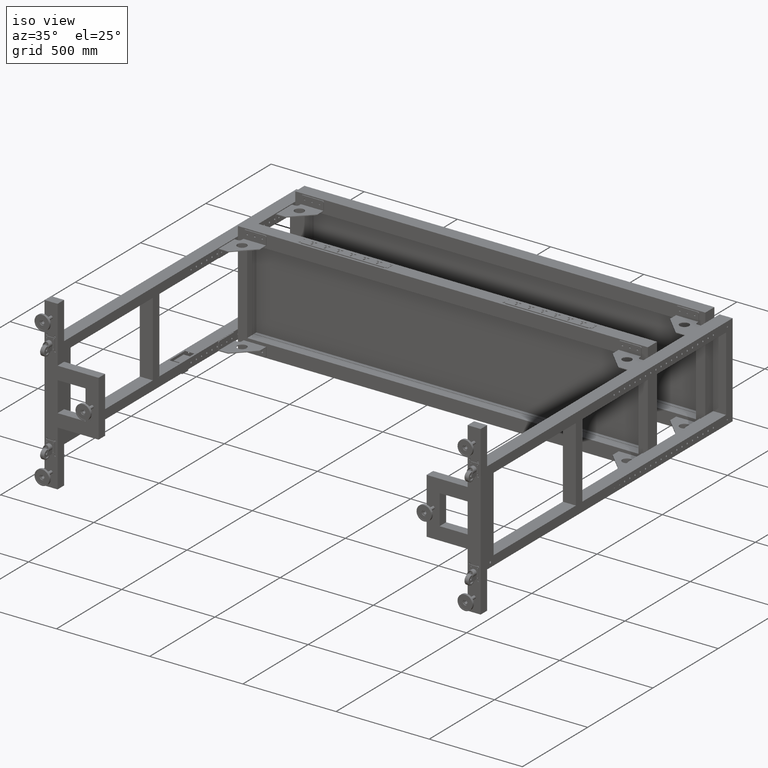
[diagram: clean part render]
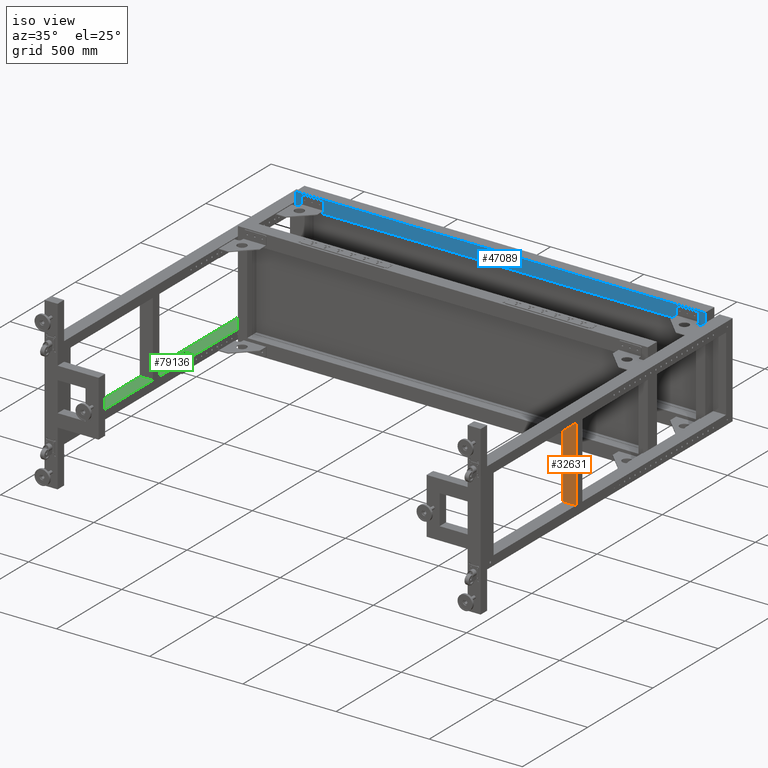
[diagram: same view with three faces highlighted in distinct colors, each labeled with its STEP entity id]
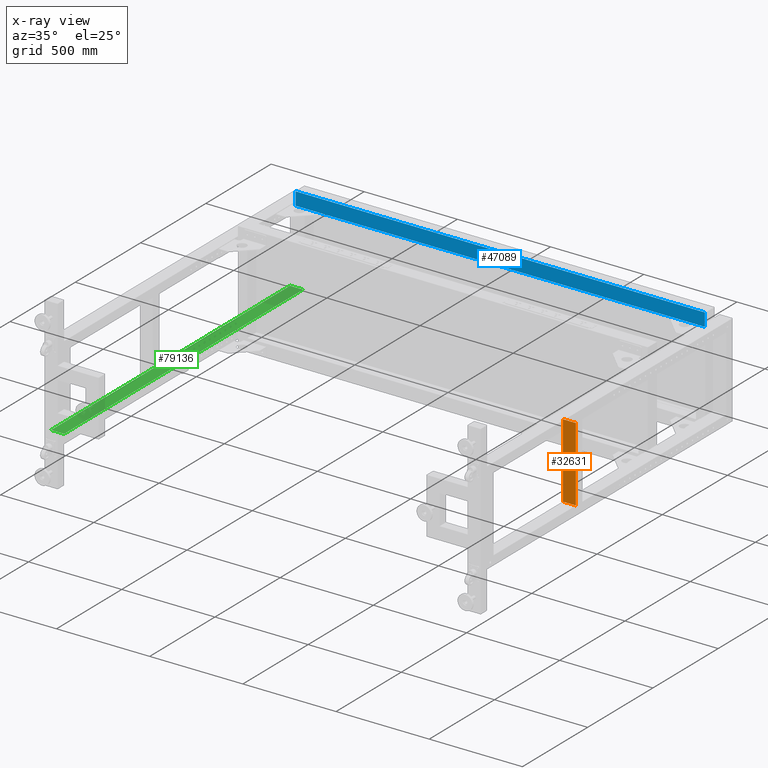
[diagram: x-ray of the same camera — body ghosted, the three highlighted faces saturated]
A machine part, iso view with three faces highlighted in distinct colors.
The next image is the same camera in x-ray (body ghosted, the three faces saturated) — at least one of them is partly hidden behind the body in this view.
Their STEP definitions:

[orange] entity #32631 — the highlighted planar face has unit normal (-0, 1, 0).
#868 = EDGE_CURVE ( 'NONE', #46948, #16409, #51902, .T. ) ;
#3862 = EDGE_CURVE ( 'NONE', #38160, #16409, #40064, .T. ) ;
#7298 = DIRECTION ( 'NONE',  ( -1.000000000000000000, -2.653611717788262918E-16, 0.000000000000000000 ) ) ;
#9056 = ORIENTED_EDGE ( 'NONE', *, *, #868, .F. ) ;
#10010 = EDGE_CURVE ( 'NONE', #29102, #38160, #69887, .T. ) ;
#10938 = DIRECTION ( 'NONE',  ( -2.653611717788262918E-16, 1.000000000000000000, 0.000000000000000000 ) ) ;
#13358 = EDGE_LOOP ( 'NONE', ( #9056, #23781, #74408, #20474 ) ) ;
#16409 = VERTEX_POINT ( 'NONE', #22964 ) ;
#20474 = ORIENTED_EDGE ( 'NONE', *, *, #3862, .T. ) ;
#21615 = CARTESIAN_POINT ( 'NONE',  ( 931.8275125628150590, -164.5589195979876820, 200.0000000000000000 ) ) ;
#22964 = CARTESIAN_POINT ( 'NONE',  ( 931.8275125628150590, -164.5589195979876820, -200.0000000000000000 ) ) ;
#23781 = ORIENTED_EDGE ( 'NONE', *, *, #32182, .F. ) ;
#24958 = VECTOR ( 'NONE', #40925, 1000.000000000000000 ) ;
#25733 = CARTESIAN_POINT ( 'NONE',  ( 1001.827512562815059, -164.5589195979876536, -200.0000000000000000 ) ) ;
#28047 = CARTESIAN_POINT ( 'NONE',  ( 1001.827512562815059, -164.5589195979876536, 200.0000000000000000 ) ) ;
#29102 = VERTEX_POINT ( 'NONE', #28047 ) ;
#32182 = EDGE_CURVE ( 'NONE', #29102, #46948, #45847, .T. ) ;
#32631 = ADVANCED_FACE ( 'NONE', ( #65778 ), #42059, .F. ) ;
#32724 = DIRECTION ( 'NONE',  ( -0.000000000000000000, 0.000000000000000000, -1.000000000000000000 ) ) ;
#33046 = CARTESIAN_POINT ( 'NONE',  ( 1001.827512562815059, -164.5589195979876536, 200.0000000000000000 ) ) ;
#35514 = CARTESIAN_POINT ( 'NONE',  ( 1001.827512562815059, -164.5589195979876536, 200.0000000000000000 ) ) ;
#38160 = VERTEX_POINT ( 'NONE', #53867 ) ;
#40064 = LINE ( 'NONE', #21615, #58036 ) ;
#40925 = DIRECTION ( 'NONE',  ( -0.000000000000000000, 0.000000000000000000, -1.000000000000000000 ) ) ;
#41233 = DIRECTION ( 'NONE',  ( -1.000000000000000000, -2.653611717788262918E-16, 0.000000000000000000 ) ) ;
#41581 = CARTESIAN_POINT ( 'NONE',  ( 1001.827512562815059, -164.5589195979876536, -200.0000000000000000 ) ) ;
#42059 = PLANE ( 'NONE',  #69488 ) ;
#45847 = LINE ( 'NONE', #72012, #24958 ) ;
#46948 = VERTEX_POINT ( 'NONE', #41581 ) ;
#51107 = DIRECTION ( 'NONE',  ( -1.000000000000000000, -2.653611717788262918E-16, 0.000000000000000000 ) ) ;
#51902 = LINE ( 'NONE', #25733, #61333 ) ;
#53867 = CARTESIAN_POINT ( 'NONE',  ( 931.8275125628150590, -164.5589195979876820, 200.0000000000000000 ) ) ;
#58036 = VECTOR ( 'NONE', #32724, 1000.000000000000000 ) ;
#60522 = VECTOR ( 'NONE', #7298, 1000.000000000000000 ) ;
#61333 = VECTOR ( 'NONE', #51107, 1000.000000000000000 ) ;
#65778 = FACE_OUTER_BOUND ( 'NONE', #13358, .T. ) ;
#69488 = AXIS2_PLACEMENT_3D ( 'NONE', #35514, #10938, #41233 ) ;
#69887 = LINE ( 'NONE', #33046, #60522 ) ;
#72012 = CARTESIAN_POINT ( 'NONE',  ( 1001.827512562815059, -164.5589195979876536, 200.0000000000000000 ) ) ;
#74408 = ORIENTED_EDGE ( 'NONE', *, *, #10010, .T. ) ;

[blue] entity #47089 — the highlighted planar face has unit normal (0, 1, 0).
#2730 = VECTOR ( 'NONE', #22674, 1000.000000000000000 ) ;
#6691 = LINE ( 'NONE', #31642, #51390 ) ;
#8811 = CARTESIAN_POINT ( 'NONE',  ( -1266.172487437185964, 926.9410804020119485, 230.0000000000009379 ) ) ;
#10968 = CARTESIAN_POINT ( 'NONE',  ( -1266.172487437185964, 926.9410804020119485, 230.0000000000009379 ) ) ;
#11852 = CARTESIAN_POINT ( 'NONE',  ( 929.8275125628159685, 926.9410804020120622, 300.0000000000009095 ) ) ;
#12130 = LINE ( 'NONE', #37092, #15838 ) ;
#12257 = AXIS2_PLACEMENT_3D ( 'NONE', #55052, #74695, #80013 ) ;
#13328 = ORIENTED_EDGE ( 'NONE', *, *, #46725, .F. ) ;
#13966 = VECTOR ( 'NONE', #41730, 1000.000000000000000 ) ;
#15838 = VECTOR ( 'NONE', #62051, 1000.000000000000000 ) ;
#16249 = EDGE_CURVE ( 'NONE', #61254, #60267, #12130, .T. ) ;
#19136 = ORIENTED_EDGE ( 'NONE', *, *, #16249, .T. ) ;
#20048 = ORIENTED_EDGE ( 'NONE', *, *, #63917, .T. ) ;
#22674 = DIRECTION ( 'NONE',  ( 1.000000000000000000, 0.000000000000000000, 0.000000000000000000 ) ) ;
#22875 = LINE ( 'NONE', #58942, #13966 ) ;
#26117 = CARTESIAN_POINT ( 'NONE',  ( -1266.172487437185964, 926.9410804020117212, 300.0000000000009095 ) ) ;
#27350 = VERTEX_POINT ( 'NONE', #26117 ) ;
#31642 = CARTESIAN_POINT ( 'NONE',  ( -1266.172487437185964, 926.9410804020117212, 300.0000000000009095 ) ) ;
#37092 = CARTESIAN_POINT ( 'NONE',  ( 929.8275125628159685, 926.9410804020122896, 230.0000000000009379 ) ) ;
#39732 = CARTESIAN_POINT ( 'NONE',  ( 929.8275125628159685, 926.9410804020122896, 230.0000000000009379 ) ) ;
#41730 = DIRECTION ( 'NONE',  ( 0.000000000000000000, -4.000000000000000311E-15, 1.000000000000000000 ) ) ;
#46725 = EDGE_CURVE ( 'NONE', #27350, #60267, #6691, .T. ) ;
#47089 = ADVANCED_FACE ( 'NONE', ( #49726 ), #74286, .F. ) ;
#49726 = FACE_OUTER_BOUND ( 'NONE', #73349, .T. ) ;
#50419 = VERTEX_POINT ( 'NONE', #10968 ) ;
#51390 = VECTOR ( 'NONE', #56606, 1000.000000000000000 ) ;
#55052 = CARTESIAN_POINT ( 'NONE',  ( -1266.172487437185964, 926.9410804020119485, 230.0000000000009379 ) ) ;
#56075 = ORIENTED_EDGE ( 'NONE', *, *, #58926, .F. ) ;
#56606 = DIRECTION ( 'NONE',  ( 1.000000000000000000, 0.000000000000000000, 0.000000000000000000 ) ) ;
#58926 = EDGE_CURVE ( 'NONE', #50419, #27350, #22875, .T. ) ;
#58942 = CARTESIAN_POINT ( 'NONE',  ( -1266.172487437185964, 926.9410804020119485, 230.0000000000009379 ) ) ;
#60267 = VERTEX_POINT ( 'NONE', #11852 ) ;
#61254 = VERTEX_POINT ( 'NONE', #39732 ) ;
#62051 = DIRECTION ( 'NONE',  ( 1.061444687115305305E-30, -4.000000000000000311E-15, 1.000000000000000000 ) ) ;
#63917 = EDGE_CURVE ( 'NONE', #50419, #61254, #66082, .T. ) ;
#66082 = LINE ( 'NONE', #8811, #2730 ) ;
#73349 = EDGE_LOOP ( 'NONE', ( #20048, #19136, #13328, #56075 ) ) ;
#74286 = PLANE ( 'NONE',  #12257 ) ;
#74695 = DIRECTION ( 'NONE',  ( 0.000000000000000000, 1.000000000000000000, 4.000000000000000311E-15 ) ) ;
#80013 = DIRECTION ( 'NONE',  ( 0.000000000000000000, -4.000000000000000311E-15, 1.000000000000000000 ) ) ;

[green] entity #79136 — the highlighted planar face has unit normal (0, 0, 1).
#673 = LINE ( 'NONE', #31783, #45750 ) ;
#699 = LINE ( 'NONE', #25652, #49725 ) ;
#1571 = VECTOR ( 'NONE', #7488, 1000.000000000000000 ) ;
#2403 = EDGE_LOOP ( 'NONE', ( #71452, #5863, #70677, #72930, #76700, #62560, #18769, #12973 ) ) ;
#3498 = CARTESIAN_POINT ( 'NONE',  ( -1338.172487437184145, 926.9410804020128580, -200.0000000000000000 ) ) ;
#3562 = CARTESIAN_POINT ( 'NONE',  ( -1338.172487437185055, -844.5589195979889610, -200.0000000000000000 ) ) ;
#3780 = ORIENTED_EDGE ( 'NONE', *, *, #36015, .F. ) ;
#3969 = DIRECTION ( 'NONE',  ( 0.000000000000000000, 0.000000000000000000, 1.000000000000000000 ) ) ;
#4648 = AXIS2_PLACEMENT_3D ( 'NONE', #47486, #40965, #21714 ) ;
#5495 = EDGE_LOOP ( 'NONE', ( #52152, #3780 ) ) ;
#5863 = ORIENTED_EDGE ( 'NONE', *, *, #18942, .T. ) ;
#7488 = DIRECTION ( 'NONE',  ( -1.000000000000000000, 0.000000000000000000, 0.000000000000000000 ) ) ;
#8080 = CIRCLE ( 'NONE', #28978, 1.600000000000045830 ) ;
#8606 = VERTEX_POINT ( 'NONE', #36270 ) ;
#8665 = DIRECTION ( 'NONE',  ( 0.000000000000000000, 0.000000000000000000, 1.000000000000000000 ) ) ;
#9229 = EDGE_CURVE ( 'NONE', #8606, #65513, #76205, .T. ) ;
#9345 = DIRECTION ( 'NONE',  ( 1.000000000000000078E-15, 1.000000000000000000, 0.000000000000000000 ) ) ;
#10214 = ORIENTED_EDGE ( 'NONE', *, *, #50552, .F. ) ;
#12973 = ORIENTED_EDGE ( 'NONE', *, *, #14830, .T. ) ;
#13625 = EDGE_LOOP ( 'NONE', ( #41360, #32756 ) ) ;
#14830 = EDGE_CURVE ( 'NONE', #52867, #24168, #60693, .T. ) ;
#15437 = VERTEX_POINT ( 'NONE', #19609 ) ;
#16228 = FACE_BOUND ( 'NONE', #5495, .T. ) ;
#16284 = LINE ( 'NONE', #78473, #54903 ) ;
#16545 = EDGE_CURVE ( 'NONE', #72195, #54658, #8080, .T. ) ;
#16940 = ORIENTED_EDGE ( 'NONE', *, *, #59101, .F. ) ;
#17440 = CARTESIAN_POINT ( 'NONE',  ( -1268.156444386293742, 926.9410804020128580, -200.0000000000000284 ) ) ;
#17636 = ORIENTED_EDGE ( 'NONE', *, *, #9229, .F. ) ;
#18404 = CARTESIAN_POINT ( 'NONE',  ( -1333.172487437185055, 173.4410804020110106, -200.0000000000000000 ) ) ;
#18667 = CARTESIAN_POINT ( 'NONE',  ( -1268.172487437185964, 986.4410804020136538, -200.0000000000000284 ) ) ;
#18715 = CARTESIAN_POINT ( 'NONE',  ( -1333.172487437185055, 43.44108040201100351, -200.0000000000000000 ) ) ;
#18769 = ORIENTED_EDGE ( 'NONE', *, *, #40330, .T. ) ;
#18942 = EDGE_CURVE ( 'NONE', #79314, #50281, #77539, .T. ) ;
#19077 = DIRECTION ( 'NONE',  ( 5.782411586589359857E-17, -1.000000000000000000, 0.000000000000000000 ) ) ;
#19389 = LINE ( 'NONE', #62397, #40487 ) ;
#19609 = CARTESIAN_POINT ( 'NONE',  ( -1338.172487437185055, 986.4410804020136538, -200.0000000000000284 ) ) ;
#19962 = LINE ( 'NONE', #25716, #44065 ) ;
#20150 = CARTESIAN_POINT ( 'NONE',  ( -1328.172487437185055, 48.44108040201100351, -200.0000000000000000 ) ) ;
#20382 = CARTESIAN_POINT ( 'NONE',  ( -1268.172487437184827, -844.5589195979889610, -200.0000000000000000 ) ) ;
#20409 = AXIS2_PLACEMENT_3D ( 'NONE', #18715, #55972, #50219 ) ;
#20466 = ORIENTED_EDGE ( 'NONE', *, *, #67769, .F. ) ;
#20574 = VERTEX_POINT ( 'NONE', #26441 ) ;
#21714 = DIRECTION ( 'NONE',  ( 0.000000000000000000, -1.000000000000000000, 0.000000000000000000 ) ) ;
#22522 = DIRECTION ( 'NONE',  ( 0.000000000000000000, 0.000000000000000000, 1.000000000000000000 ) ) ;
#22756 = DIRECTION ( 'NONE',  ( 0.000000000000000000, -1.000000000000000000, 0.000000000000000000 ) ) ;
#22883 = EDGE_CURVE ( 'NONE', #54658, #72195, #37443, .T. ) ;
#24168 = VERTEX_POINT ( 'NONE', #38579 ) ;
#25652 = CARTESIAN_POINT ( 'NONE',  ( -1338.172487437185055, -844.5589195979889610, -200.0000000000000000 ) ) ;
#25716 = CARTESIAN_POINT ( 'NONE',  ( -1278.172487437184827, 168.4410804020110106, -200.0000000000000000 ) ) ;
#25958 = EDGE_LOOP ( 'NONE', ( #35703, #10214 ) ) ;
#26441 = CARTESIAN_POINT ( 'NONE',  ( -1328.172487437185055, 48.44108040201100351, -200.0000000000000000 ) ) ;
#27013 = CARTESIAN_POINT ( 'NONE',  ( -1268.172487437184827, -844.5589195979889610, -200.0000000000000000 ) ) ;
#27116 = ORIENTED_EDGE ( 'NONE', *, *, #39807, .F. ) ;
#28088 = PLANE ( 'NONE',  #39327 ) ;
#28500 = FACE_BOUND ( 'NONE', #66463, .T. ) ;
#28769 = DIRECTION ( 'NONE',  ( 1.000000000000000000, -1.585669478376821542E-15, 0.000000000000000000 ) ) ;
#28978 = AXIS2_PLACEMENT_3D ( 'NONE', #37296, #62254, #43442 ) ;
#29332 = LINE ( 'NONE', #27013, #79494 ) ;
#30734 = VERTEX_POINT ( 'NONE', #36557 ) ;
#30822 = CIRCLE ( 'NONE', #20409, 1.600000000000045830 ) ;
#31685 = VERTEX_POINT ( 'NONE', #57516 ) ;
#31783 = CARTESIAN_POINT ( 'NONE',  ( -1328.172487437185055, 168.4410804020110106, -200.0000000000000000 ) ) ;
#32730 = EDGE_CURVE ( 'NONE', #65513, #20574, #673, .T. ) ;
#32756 = ORIENTED_EDGE ( 'NONE', *, *, #22883, .F. ) ;
#32937 = DIRECTION ( 'NONE',  ( 0.000000000000000000, -1.000000000000000000, 0.000000000000000000 ) ) ;
#33371 = CIRCLE ( 'NONE', #4648, 1.600000000000045830 ) ;
#34673 = CARTESIAN_POINT ( 'NONE',  ( -1333.172487437185055, 45.04108040201104757, -200.0000000000000000 ) ) ;
#35345 = VERTEX_POINT ( 'NONE', #18667 ) ;
#35703 = ORIENTED_EDGE ( 'NONE', *, *, #61060, .F. ) ;
#35745 = CARTESIAN_POINT ( 'NONE',  ( -1273.172487437185055, 175.0410804020110618, -200.0000000000000000 ) ) ;
#36015 = EDGE_CURVE ( 'NONE', #47378, #77701, #33371, .T. ) ;
#36270 = CARTESIAN_POINT ( 'NONE',  ( -1278.172487437184827, 168.4410804020110106, -200.0000000000000000 ) ) ;
#36557 = CARTESIAN_POINT ( 'NONE',  ( -1278.172487437184827, 48.44108040201100351, -200.0000000000000000 ) ) ;
#37296 = CARTESIAN_POINT ( 'NONE',  ( -1333.172487437185055, 173.4410804020110106, -200.0000000000000000 ) ) ;
#37443 = CIRCLE ( 'NONE', #63546, 1.600000000000045830 ) ;
#37997 = VERTEX_POINT ( 'NONE', #64144 ) ;
#38579 = CARTESIAN_POINT ( 'NONE',  ( -1268.156444386293742, 919.4410804020135402, -200.0000000000000284 ) ) ;
#39327 = AXIS2_PLACEMENT_3D ( 'NONE', #3562, #3969, #22756 ) ;
#39807 = EDGE_CURVE ( 'NONE', #20574, #30734, #63964, .T. ) ;
#40286 = VECTOR ( 'NONE', #52592, 1000.000000000000000 ) ;
#40330 = EDGE_CURVE ( 'NONE', #60359, #52867, #29332, .T. ) ;
#40418 = AXIS2_PLACEMENT_3D ( 'NONE', #54609, #79987, #73460 ) ;
#40421 = VECTOR ( 'NONE', #44744, 1000.000000000000000 ) ;
#40487 = VECTOR ( 'NONE', #50906, 1000.000000000000000 ) ;
#40678 = CIRCLE ( 'NONE', #62897, 1.600000000000045830 ) ;
#40702 = EDGE_LOOP ( 'NONE', ( #45522, #20466 ) ) ;
#40965 = DIRECTION ( 'NONE',  ( 0.000000000000000000, 0.000000000000000000, 1.000000000000000000 ) ) ;
#41360 = ORIENTED_EDGE ( 'NONE', *, *, #16545, .F. ) ;
#41374 = DIRECTION ( 'NONE',  ( 0.000000000000000000, 1.000000000000000000, 0.000000000000000000 ) ) ;
#42490 = LINE ( 'NONE', #74392, #57748 ) ;
#43442 = DIRECTION ( 'NONE',  ( 0.000000000000000000, 1.000000000000000000, 0.000000000000000000 ) ) ;
#44065 = VECTOR ( 'NONE', #77930, 1000.000000000000000 ) ;
#44744 = DIRECTION ( 'NONE',  ( 1.000000000000000000, 0.000000000000000000, 0.000000000000000000 ) ) ;
#45522 = ORIENTED_EDGE ( 'NONE', *, *, #70377, .F. ) ;
#45750 = VECTOR ( 'NONE', #19077, 1000.000000000000000 ) ;
#45840 = DIRECTION ( 'NONE',  ( 0.000000000000000000, 1.000000000000000000, 0.000000000000000000 ) ) ;
#45860 = AXIS2_PLACEMENT_3D ( 'NONE', #64040, #77896, #32937 ) ;
#46092 = VERTEX_POINT ( 'NONE', #66548 ) ;
#46280 = DIRECTION ( 'NONE',  ( 0.000000000000000000, 1.000000000000000000, 0.000000000000000000 ) ) ;
#46509 = FACE_BOUND ( 'NONE', #13625, .T. ) ;
#46683 = CARTESIAN_POINT ( 'NONE',  ( -1273.172487437185055, 43.44108040201100351, -200.0000000000000000 ) ) ;
#46920 = FACE_BOUND ( 'NONE', #40702, .T. ) ;
#47018 = VECTOR ( 'NONE', #28769, 1000.000000000000000 ) ;
#47329 = FACE_OUTER_BOUND ( 'NONE', #2403, .T. ) ;
#47378 = VERTEX_POINT ( 'NONE', #35745 ) ;
#47486 = CARTESIAN_POINT ( 'NONE',  ( -1273.172487437185055, 173.4410804020110106, -200.0000000000000000 ) ) ;
#48221 = DIRECTION ( 'NONE',  ( 1.000000000000000000, -1.585669478376821542E-15, 0.000000000000000000 ) ) ;
#48300 = CIRCLE ( 'NONE', #45860, 1.600000000000045830 ) ;
#48630 = LINE ( 'NONE', #60526, #55093 ) ;
#49725 = VECTOR ( 'NONE', #53544, 1000.000000000000000 ) ;
#50219 = DIRECTION ( 'NONE',  ( 0.000000000000000000, -1.000000000000000000, 0.000000000000000000 ) ) ;
#50281 = VERTEX_POINT ( 'NONE', #73305 ) ;
#50552 = EDGE_CURVE ( 'NONE', #63514, #37997, #30822, .T. ) ;
#50906 = DIRECTION ( 'NONE',  ( 0.000000000000000000, 1.000000000000000000, 0.000000000000000000 ) ) ;
#52152 = ORIENTED_EDGE ( 'NONE', *, *, #77838, .F. ) ;
#52592 = DIRECTION ( 'NONE',  ( -1.000000000000000000, 4.448884876874220047E-16, 0.000000000000000000 ) ) ;
#52867 = VERTEX_POINT ( 'NONE', #75372 ) ;
#53323 = CARTESIAN_POINT ( 'NONE',  ( -1338.172487437185055, 919.4410804020136538, -200.0000000000000284 ) ) ;
#53544 = DIRECTION ( 'NONE',  ( 1.000000000000000000, 0.000000000000000000, 0.000000000000000000 ) ) ;
#53700 = CARTESIAN_POINT ( 'NONE',  ( -1273.172487437185055, 41.84108040201106604, -200.0000000000000000 ) ) ;
#54270 = FACE_BOUND ( 'NONE', #25958, .T. ) ;
#54609 = CARTESIAN_POINT ( 'NONE',  ( -1333.172487437185055, 43.44108040201100351, -200.0000000000000000 ) ) ;
#54658 = VERTEX_POINT ( 'NONE', #56365 ) ;
#54903 = VECTOR ( 'NONE', #9345, 1000.000000000000000 ) ;
#55093 = VECTOR ( 'NONE', #48221, 1000.000000000000000 ) ;
#55387 = VERTEX_POINT ( 'NONE', #53700 ) ;
#55972 = DIRECTION ( 'NONE',  ( 0.000000000000000000, 0.000000000000000000, 1.000000000000000000 ) ) ;
#56365 = CARTESIAN_POINT ( 'NONE',  ( -1333.172487437185055, 175.0410804020110618, -200.0000000000000000 ) ) ;
#57516 = CARTESIAN_POINT ( 'NONE',  ( -1338.172487437185055, -844.5589195979889610, -200.0000000000000000 ) ) ;
#57748 = VECTOR ( 'NONE', #68280, 1000.000000000000000 ) ;
#59101 = EDGE_CURVE ( 'NONE', #30734, #8606, #19962, .T. ) ;
#60359 = VERTEX_POINT ( 'NONE', #20382 ) ;
#60526 = CARTESIAN_POINT ( 'NONE',  ( -1338.172487437185055, 986.4410804020136538, -200.0000000000000284 ) ) ;
#60693 = LINE ( 'NONE', #53323, #47018 ) ;
#61060 = EDGE_CURVE ( 'NONE', #37997, #63514, #79615, .T. ) ;
#61395 = DIRECTION ( 'NONE',  ( 0.000000000000000000, 0.000000000000000000, 1.000000000000000000 ) ) ;
#62254 = DIRECTION ( 'NONE',  ( 0.000000000000000000, 0.000000000000000000, 1.000000000000000000 ) ) ;
#62397 = CARTESIAN_POINT ( 'NONE',  ( -1338.172487437185055, -844.5589195979889610, -200.0000000000000000 ) ) ;
#62560 = ORIENTED_EDGE ( 'NONE', *, *, #77480, .T. ) ;
#62897 = AXIS2_PLACEMENT_3D ( 'NONE', #71239, #22522, #41374 ) ;
#63514 = VERTEX_POINT ( 'NONE', #34673 ) ;
#63546 = AXIS2_PLACEMENT_3D ( 'NONE', #18404, #61395, #67950 ) ;
#63964 = LINE ( 'NONE', #20150, #40421 ) ;
#63987 = CIRCLE ( 'NONE', #73156, 1.600000000000045830 ) ;
#64040 = CARTESIAN_POINT ( 'NONE',  ( -1273.172487437185055, 173.4410804020110106, -200.0000000000000000 ) ) ;
#64144 = CARTESIAN_POINT ( 'NONE',  ( -1333.172487437185055, 41.84108040201106604, -200.0000000000000000 ) ) ;
#64741 = CARTESIAN_POINT ( 'NONE',  ( -1328.172487437185055, 168.4410804020110106, -200.0000000000000000 ) ) ;
#65513 = VERTEX_POINT ( 'NONE', #65591 ) ;
#65591 = CARTESIAN_POINT ( 'NONE',  ( -1328.172487437185055, 168.4410804020110106, -200.0000000000000000 ) ) ;
#66463 = EDGE_LOOP ( 'NONE', ( #16940, #27116, #73588, #17636 ) ) ;
#66548 = CARTESIAN_POINT ( 'NONE',  ( -1273.172487437185055, 45.04108040201104757, -200.0000000000000000 ) ) ;
#67469 = CARTESIAN_POINT ( 'NONE',  ( -1333.172487437185055, 171.8410804020110731, -200.0000000000000000 ) ) ;
#67769 = EDGE_CURVE ( 'NONE', #46092, #55387, #63987, .T. ) ;
#67950 = DIRECTION ( 'NONE',  ( 0.000000000000000000, 1.000000000000000000, 0.000000000000000000 ) ) ;
#68280 = DIRECTION ( 'NONE',  ( -1.000000000000000078E-15, -1.000000000000000000, -0.000000000000000000 ) ) ;
#69509 = EDGE_CURVE ( 'NONE', #15437, #35345, #48630, .T. ) ;
#70377 = EDGE_CURVE ( 'NONE', #55387, #46092, #40678, .T. ) ;
#70677 = ORIENTED_EDGE ( 'NONE', *, *, #77136, .T. ) ;
#70919 = EDGE_CURVE ( 'NONE', #79314, #24168, #42490, .T. ) ;
#71239 = CARTESIAN_POINT ( 'NONE',  ( -1273.172487437185055, 43.44108040201100351, -200.0000000000000000 ) ) ;
#71452 = ORIENTED_EDGE ( 'NONE', *, *, #70919, .F. ) ;
#72195 = VERTEX_POINT ( 'NONE', #67469 ) ;
#72930 = ORIENTED_EDGE ( 'NONE', *, *, #69509, .F. ) ;
#73156 = AXIS2_PLACEMENT_3D ( 'NONE', #46683, #8665, #46280 ) ;
#73305 = CARTESIAN_POINT ( 'NONE',  ( -1268.172487437185964, 926.9410804020127443, -200.0000000000000000 ) ) ;
#73460 = DIRECTION ( 'NONE',  ( 0.000000000000000000, -1.000000000000000000, 0.000000000000000000 ) ) ;
#73588 = ORIENTED_EDGE ( 'NONE', *, *, #32730, .F. ) ;
#74392 = CARTESIAN_POINT ( 'NONE',  ( -1268.156444386293742, 986.4410804020136538, -200.0000000000000284 ) ) ;
#75372 = CARTESIAN_POINT ( 'NONE',  ( -1268.172487437184827, 919.4410804020110390, -200.0000000000000000 ) ) ;
#75903 = CARTESIAN_POINT ( 'NONE',  ( -1273.172487437185055, 171.8410804020110731, -200.0000000000000000 ) ) ;
#76205 = LINE ( 'NONE', #64741, #1571 ) ;
#76652 = EDGE_CURVE ( 'NONE', #31685, #15437, #19389, .T. ) ;
#76700 = ORIENTED_EDGE ( 'NONE', *, *, #76652, .F. ) ;
#77136 = EDGE_CURVE ( 'NONE', #50281, #35345, #16284, .T. ) ;
#77480 = EDGE_CURVE ( 'NONE', #31685, #60359, #699, .T. ) ;
#77539 = LINE ( 'NONE', #3498, #40286 ) ;
#77701 = VERTEX_POINT ( 'NONE', #75903 ) ;
#77838 = EDGE_CURVE ( 'NONE', #77701, #47378, #48300, .T. ) ;
#77896 = DIRECTION ( 'NONE',  ( 0.000000000000000000, 0.000000000000000000, 1.000000000000000000 ) ) ;
#77930 = DIRECTION ( 'NONE',  ( -1.156482317317869999E-16, 1.000000000000000000, 0.000000000000000000 ) ) ;
#78473 = CARTESIAN_POINT ( 'NONE',  ( -1268.172487437187783, -844.5589195979890746, -200.0000000000000000 ) ) ;
#79136 = ADVANCED_FACE ( 'NONE', ( #28500, #54270, #46920, #46509, #16228, #47329 ), #28088, .T. ) ;
#79314 = VERTEX_POINT ( 'NONE', #17440 ) ;
#79494 = VECTOR ( 'NONE', #45840, 1000.000000000000000 ) ;
#79615 = CIRCLE ( 'NONE', #40418, 1.600000000000045830 ) ;
#79987 = DIRECTION ( 'NONE',  ( 0.000000000000000000, 0.000000000000000000, 1.000000000000000000 ) ) ;